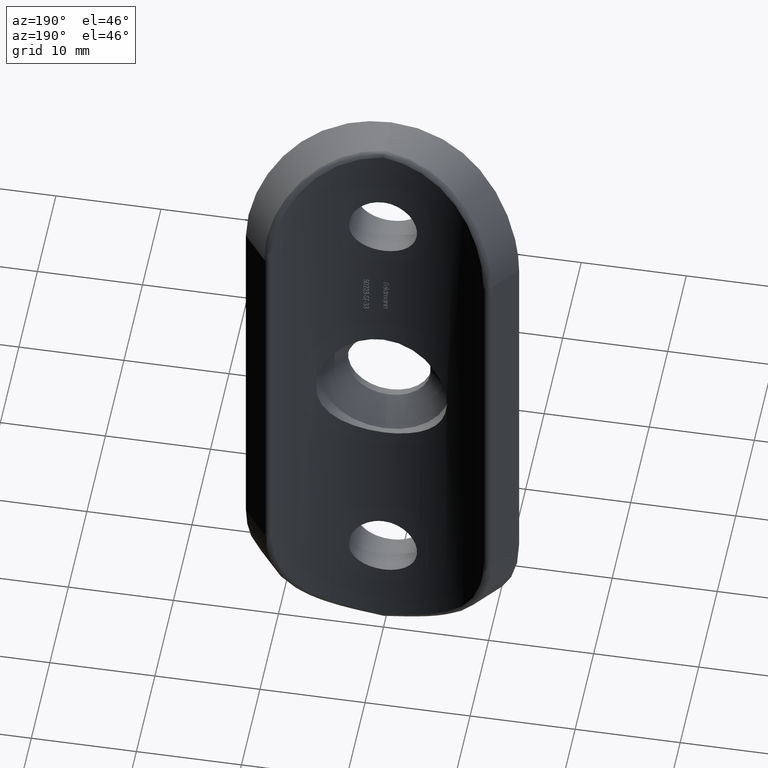
[diagram: clean part render]
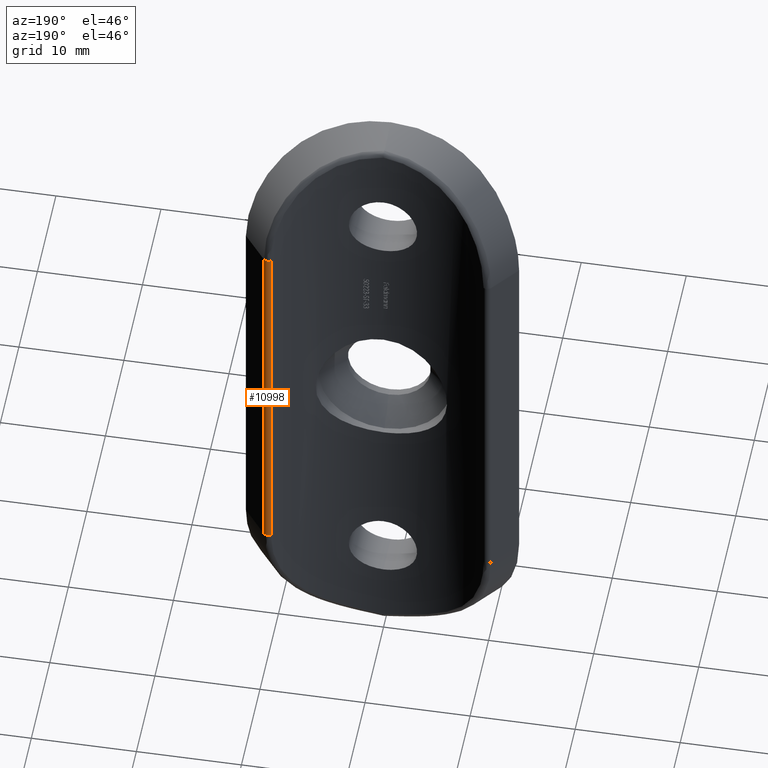
[diagram: same view with one face highlighted and labeled with its STEP entity id]
A machine part, auxiliary view. The second image highlights one B-rep face of the part: STEP entity #10998.
In plain terms, the highlighted cylindrical surface (edge-blend (fillet) strip) has radius 0.5 mm, axis along (-0, -0, -1).
Its self-contained STEP definition (entity closure, byte-faithful):
#283 = CARTESIAN_POINT ( 'NONE',  ( 10.12198592462095600, 3.378997775155144500, 18.50000000000000400 ) ) ;
#285 = EDGE_CURVE ( 'NONE', #9105, #8267, #1125, .T. ) ;
#948 = CARTESIAN_POINT ( 'NONE',  ( 10.42234159003997700, 2.979264771450548000, -18.50000000000000400 ) ) ;
#1125 = CIRCLE ( 'NONE', #12162, 0.5000000000000004400 ) ;
#2131 = DIRECTION ( 'NONE',  ( 0.0000000000000000000, -0.0000000000000000000, 1.000000000000000000 ) ) ;
#3619 = EDGE_LOOP ( 'NONE', ( #14463, #4288, #7462, #8817 ) ) ;
#3789 = DIRECTION ( 'NONE',  ( 1.000000000000000000, 0.0000000000000000000, 0.0000000000000000000 ) ) ;
#4033 = DIRECTION ( 'NONE',  ( -0.0000000000000000000, -0.0000000000000000000, -1.000000000000000000 ) ) ;
#4122 = VECTOR ( 'NONE', #5332, 1000.000000000000000 ) ;
#4288 = ORIENTED_EDGE ( 'NONE', *, *, #9261, .F. ) ;
#5302 = VECTOR ( 'NONE', #4033, 1000.000000000000000 ) ;
#5332 = DIRECTION ( 'NONE',  ( 0.0000000000000000000, 0.0000000000000000000, 1.000000000000000000 ) ) ;
#7192 = VERTEX_POINT ( 'NONE', #10628 ) ;
#7460 = CYLINDRICAL_SURFACE ( 'NONE', #10581, 0.5000000000000004400 ) ;
#7462 = ORIENTED_EDGE ( 'NONE', *, *, #14956, .F. ) ;
#7565 = DIRECTION ( 'NONE',  ( 0.0000000000000000000, -0.0000000000000000000, 1.000000000000000000 ) ) ;
#7769 = CARTESIAN_POINT ( 'NONE',  ( 10.12198592462095600, 3.378997775155144100, -18.50000000000000400 ) ) ;
#8267 = VERTEX_POINT ( 'NONE', #7769 ) ;
#8817 = ORIENTED_EDGE ( 'NONE', *, *, #9685, .F. ) ;
#8961 = CIRCLE ( 'NONE', #14300, 0.5000000000000004400 ) ;
#9105 = VERTEX_POINT ( 'NONE', #10692 ) ;
#9261 = EDGE_CURVE ( 'NONE', #10740, #8267, #11113, .T. ) ;
#9685 = EDGE_CURVE ( 'NONE', #9105, #7192, #11427, .T. ) ;
#10581 = AXIS2_PLACEMENT_3D ( 'NONE', #11021, #14715, #11438 ) ;
#10628 = CARTESIAN_POINT ( 'NONE',  ( 10.81325278673134900, 3.291015370970933300, 18.50000000000000400 ) ) ;
#10692 = CARTESIAN_POINT ( 'NONE',  ( 10.81325278673134900, 3.291015370970933800, -18.50000000000000400 ) ) ;
#10740 = VERTEX_POINT ( 'NONE', #283 ) ;
#10998 = ADVANCED_FACE ( 'NONE', ( #14015 ), #7460, .T. ) ;
#11021 = CARTESIAN_POINT ( 'NONE',  ( 10.42234159003997700, 2.979264771450548000, 31.50000000000000000 ) ) ;
#11113 = LINE ( 'NONE', #14990, #5302 ) ;
#11414 = CARTESIAN_POINT ( 'NONE',  ( 10.81325278673134900, 3.291015370970932900, 18.50000000000000400 ) ) ;
#11427 = LINE ( 'NONE', #11414, #4122 ) ;
#11438 = DIRECTION ( 'NONE',  ( -1.000000000000000000, 0.0000000000000000000, 0.0000000000000000000 ) ) ;
#12162 = AXIS2_PLACEMENT_3D ( 'NONE', #948, #2131, #13075 ) ;
#13075 = DIRECTION ( 'NONE',  ( 1.000000000000000000, 0.0000000000000000000, 0.0000000000000000000 ) ) ;
#14015 = FACE_OUTER_BOUND ( 'NONE', #3619, .T. ) ;
#14300 = AXIS2_PLACEMENT_3D ( 'NONE', #14961, #7565, #3789 ) ;
#14463 = ORIENTED_EDGE ( 'NONE', *, *, #285, .T. ) ;
#14715 = DIRECTION ( 'NONE',  ( -0.0000000000000000000, -0.0000000000000000000, -1.000000000000000000 ) ) ;
#14956 = EDGE_CURVE ( 'NONE', #7192, #10740, #8961, .T. ) ;
#14961 = CARTESIAN_POINT ( 'NONE',  ( 10.42234159003997700, 2.979264771450548500, 18.50000000000000400 ) ) ;
#14990 = CARTESIAN_POINT ( 'NONE',  ( 10.12198592462095600, 3.378997775155143200, 31.50000000000000000 ) ) ;